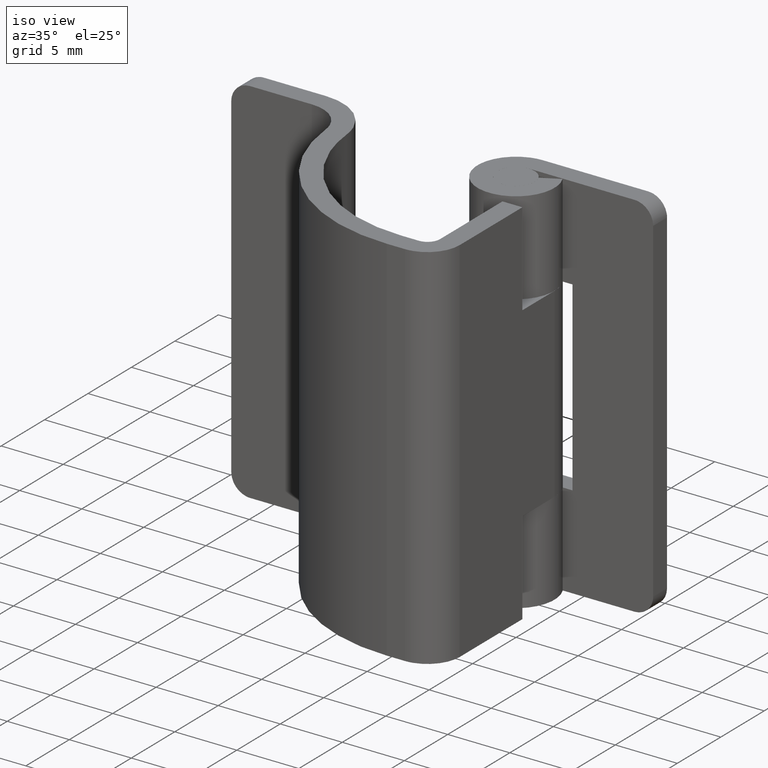
[diagram: clean part render]
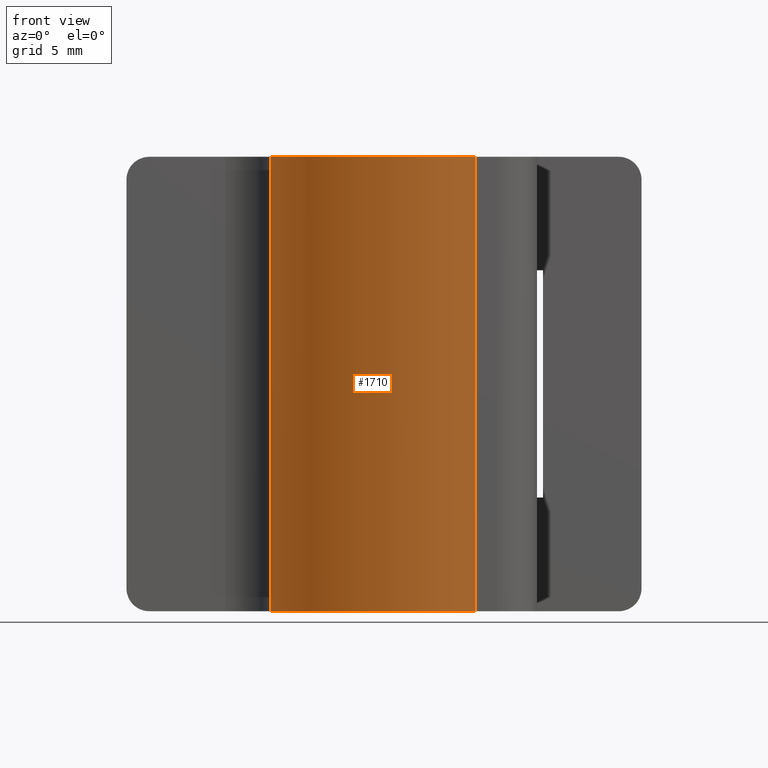
[diagram: tour spotlight — one face highlighted and labeled with its STEP entity id]
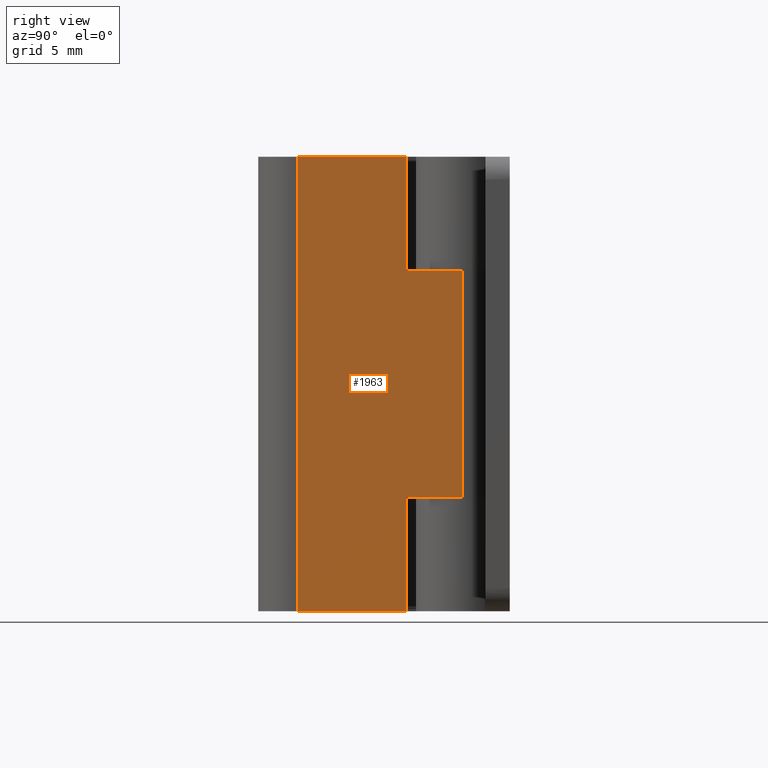
[diagram: tour spotlight — one face highlighted and labeled with its STEP entity id]
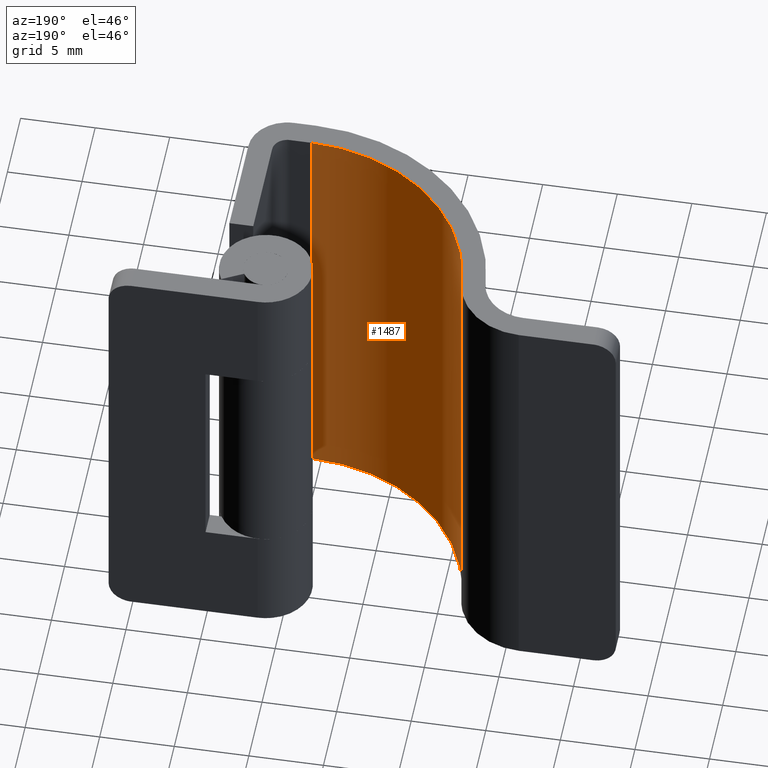
[diagram: tour spotlight — one face highlighted and labeled with its STEP entity id]
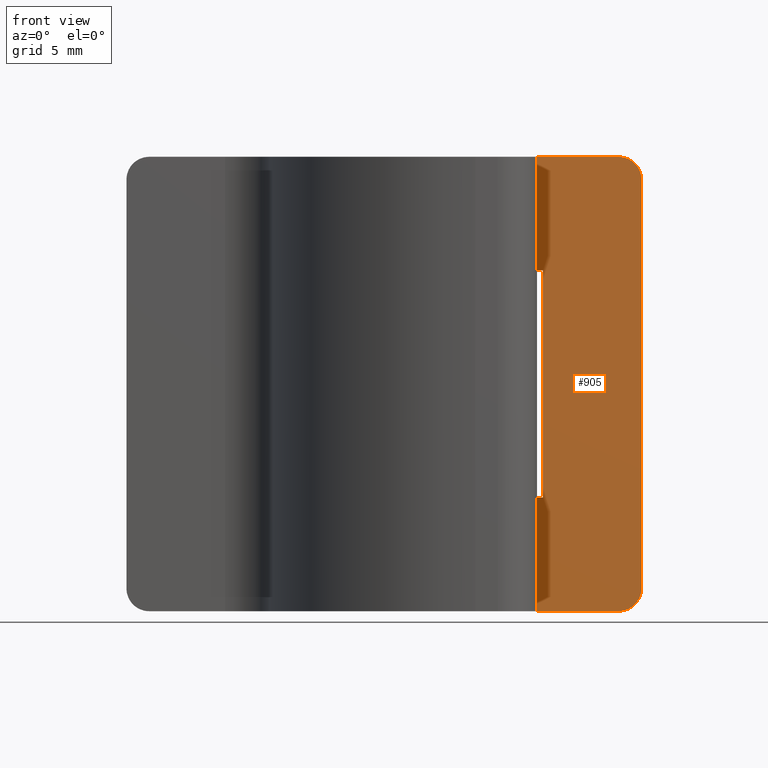
[diagram: tour spotlight — one face highlighted and labeled with its STEP entity id]
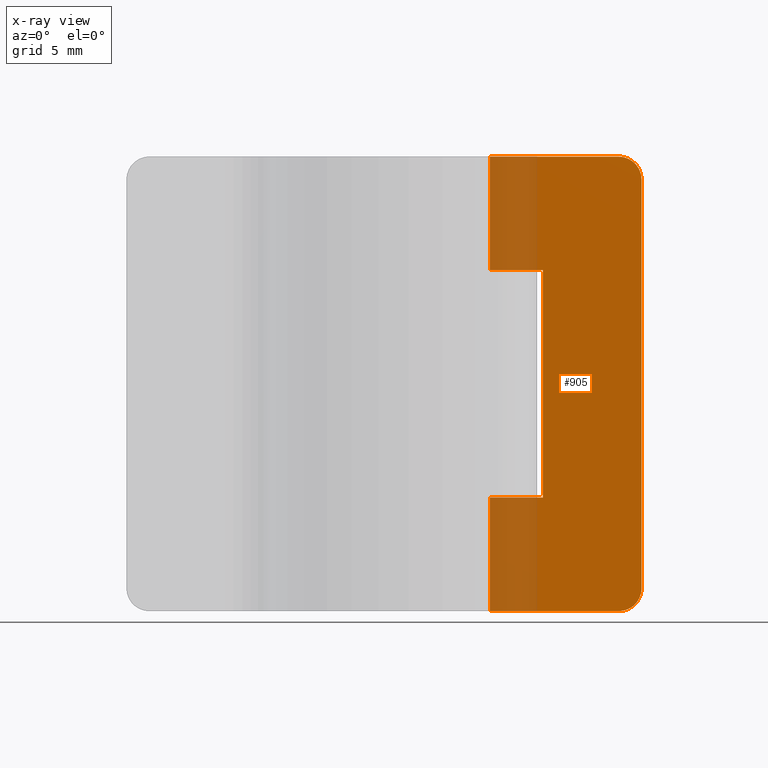
[diagram: x-ray of the same camera — body ghosted, this tour face saturated]
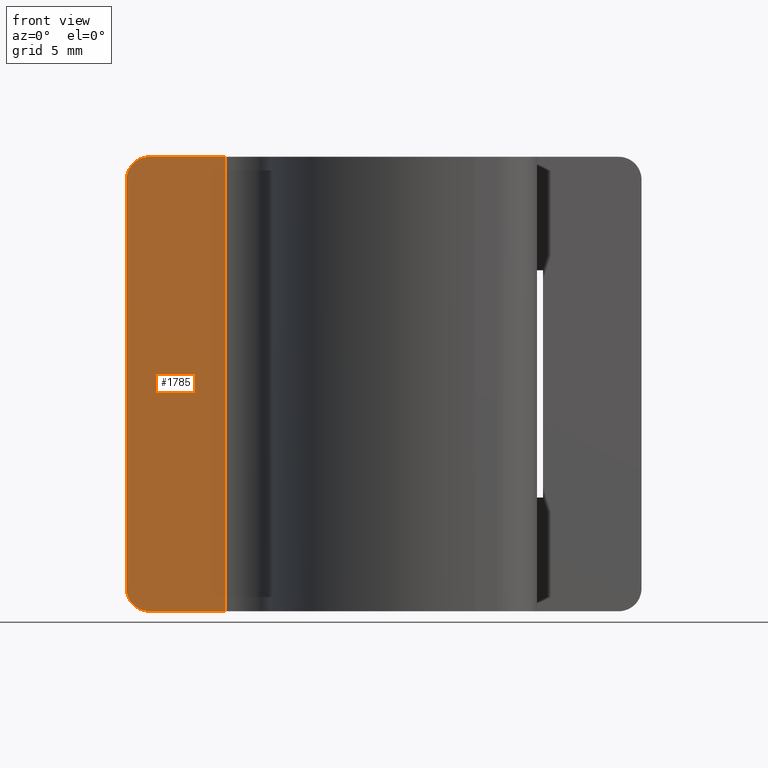
[diagram: tour spotlight — one face highlighted and labeled with its STEP entity id]
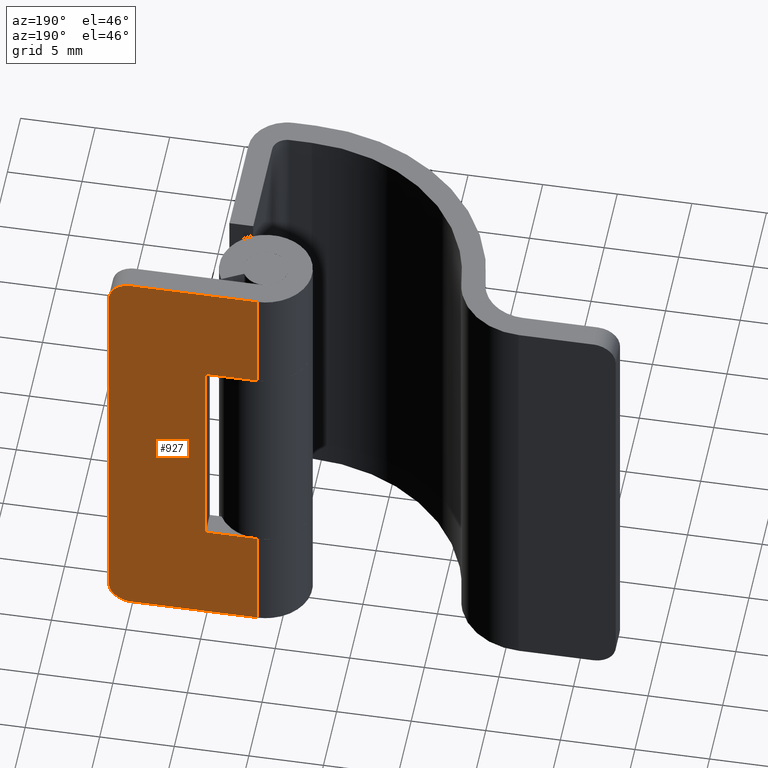
[diagram: tour spotlight — one face highlighted and labeled with its STEP entity id]
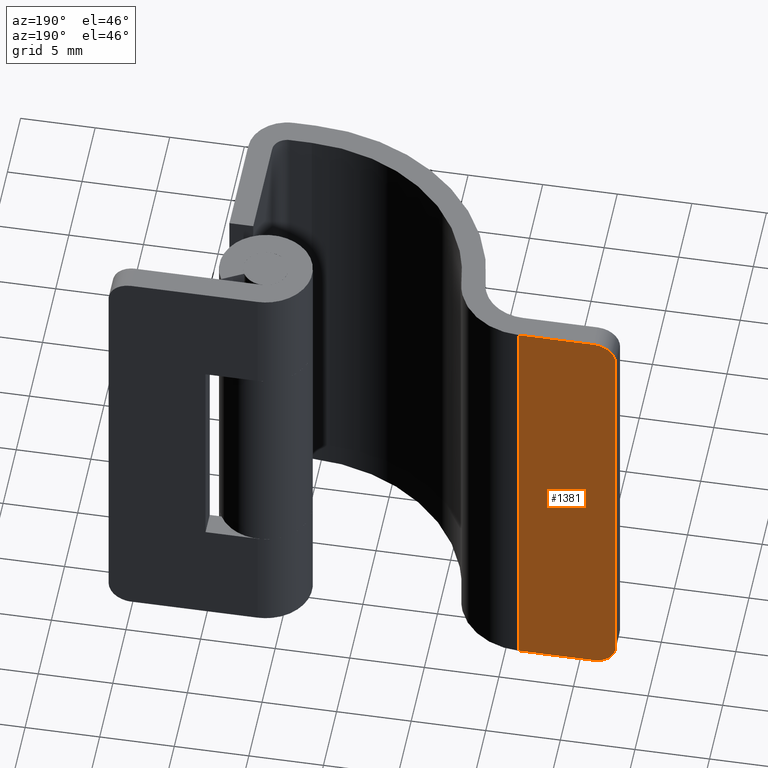
[diagram: tour spotlight — one face highlighted and labeled with its STEP entity id]
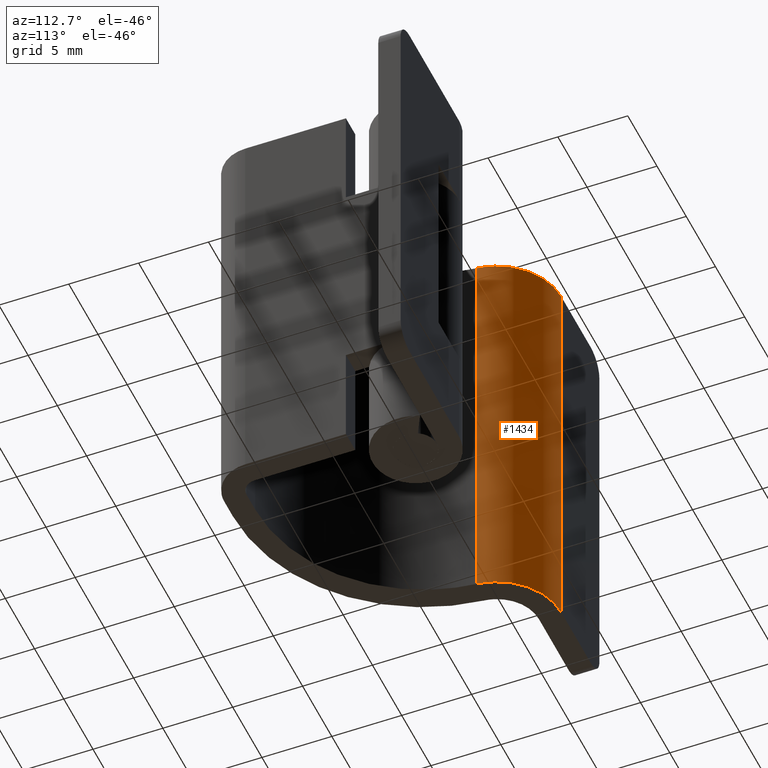
[diagram: tour spotlight — one face highlighted and labeled with its STEP entity id]
A machine part: a face-by-face anatomy tour. The part has 44 B-rep faces; the first image is the clean iso view, then the 8 largest visible faces are spotlighted one at a time (largest first), each with its STEP entity span.

Face 1 — front view, entity #1710. In plain terms, the highlighted face is a freeform B-spline surface patch.
Definition (entity closure, byte-faithful):
#1635=CARTESIAN_POINT('',(-4.477287712094340,-13.500001999999981,30.0));
#1636=VERTEX_POINT('',#1635);
#1642=CARTESIAN_POINT('',(-4.477287712094340,-13.500001999999981,0.0));
#1643=VERTEX_POINT('',#1642);
#1644=CARTESIAN_POINT('',(-4.477287712094340,-13.500001999999981,0.0));
#1645=CARTESIAN_POINT('',(-4.477287712094340,-13.500001999999981,30.0));
#1646=QUASI_UNIFORM_CURVE('',1,(#1644,#1645),.UNSPECIFIED.,.F.,.U.);
#1647=EDGE_CURVE('',#1643,#1636,#1646,.T.);
#1658=CARTESIAN_POINT('',(-3.884064043248034,-13.487057844574361,-0.750000000000001));
#1659=CARTESIAN_POINT('',(-3.884064043248034,-13.487057844574361,30.768750000000001));
#1660=CARTESIAN_POINT('',(-17.471119887822372,-14.080280801326326,-0.750000000000001));
#1661=CARTESIAN_POINT('',(-17.471119887822372,-14.080280801326326,30.768750000000008));
#1662=CARTESIAN_POINT('',(-18.064342844574359,-0.493224956751980,-0.750000000000001));
#1663=CARTESIAN_POINT('',(-18.064342844574359,-0.493224956751980,30.768750000000001));
#1671=(BOUNDED_SURFACE()B_SPLINE_SURFACE(1,2,((#1658,#1660,#1662),(#1659,#1661,#1663)),.UNSPECIFIED.,.F.,.F.,.U.)B_SPLINE_SURFACE_WITH_KNOTS((2,2),(3,3),(0.0,31.518750000000001),(0.0,22.533217793096352),.UNSPECIFIED.)GEOMETRIC_REPRESENTATION_ITEM()RATIONAL_B_SPLINE_SURFACE(((1.0,0.707106781186548,1.0),(1.0,0.707106781186548,1.0)))REPRESENTATION_ITEM('')SURFACE());
#1672=CARTESIAN_POINT('',(-18.013966576097701,-1.210843734939760,30.0));
#1673=VERTEX_POINT('',#1672);
#1674=CARTESIAN_POINT('',(-4.477287712094343,-13.500001999999981,30.0));
#1675=CARTESIAN_POINT('',(-16.823930230541610,-13.500001353531287,30.0));
#1676=CARTESIAN_POINT('',(-18.013966576097680,-1.210843734939759,30.0));
#1684=(BOUNDED_CURVE()B_SPLINE_CURVE(2,(#1674,#1675,#1676),.UNSPECIFIED.,.F.,.U.)CURVE()GEOMETRIC_REPRESENTATION_ITEM()QUASI_UNIFORM_CURVE()RATIONAL_B_SPLINE_CURVE((1.0,0.740400389587567,1.0))REPRESENTATION_ITEM(''));
#1685=EDGE_CURVE('',#1636,#1673,#1684,.T.);
#1686=ORIENTED_EDGE('',*,*,#1685,.T.);
#1687=CARTESIAN_POINT('',(-18.013966576097701,-1.210843734939760,0.0));
#1688=VERTEX_POINT('',#1687);
#1689=CARTESIAN_POINT('',(-18.013966576097701,-1.210843734939760,0.0));
#1690=CARTESIAN_POINT('',(-18.013966576097701,-1.210843734939760,30.0));
#1691=QUASI_UNIFORM_CURVE('',1,(#1689,#1690),.UNSPECIFIED.,.F.,.U.);
#1692=EDGE_CURVE('',#1688,#1673,#1691,.T.);
#1693=ORIENTED_EDGE('',*,*,#1692,.F.);
#1694=CARTESIAN_POINT('',(-4.477287712094343,-13.500001999999981,0.0));
#1695=CARTESIAN_POINT('',(-16.823930230541610,-13.500001353531287,0.0));
#1696=CARTESIAN_POINT('',(-18.013966576097680,-1.210843734939759,0.0));
#1704=(BOUNDED_CURVE()B_SPLINE_CURVE(2,(#1694,#1695,#1696),.UNSPECIFIED.,.F.,.U.)CURVE()GEOMETRIC_REPRESENTATION_ITEM()QUASI_UNIFORM_CURVE()RATIONAL_B_SPLINE_CURVE((1.0,0.740400389587567,1.0))REPRESENTATION_ITEM(''));
#1705=EDGE_CURVE('',#1643,#1688,#1704,.T.);
#1706=ORIENTED_EDGE('',*,*,#1705,.F.);
#1707=ORIENTED_EDGE('',*,*,#1647,.T.);
#1708=EDGE_LOOP('',(#1686,#1693,#1706,#1707));
#1709=FACE_OUTER_BOUND('',#1708,.T.);
#1710=ADVANCED_FACE('',(#1709),#1671,.T.);

Face 2 — right view, entity #1963. In plain terms, the highlighted face is a freeform B-spline surface patch.
Definition (entity closure, byte-faithful):
#1033=CARTESIAN_POINT('',(-0.400000999999904,-3.700001000000000,22.500000000000000));
#1034=VERTEX_POINT('',#1033);
#1040=CARTESIAN_POINT('',(-0.400000999999904,0.002489979722980,22.500000000000000));
#1041=VERTEX_POINT('',#1040);
#1042=CARTESIAN_POINT('',(-0.400000999999904,-3.700001000000000,22.500000000000000));
#1043=CARTESIAN_POINT('',(-0.400000999999904,0.002489979722980,22.500000000000000));
#1044=QUASI_UNIFORM_CURVE('',1,(#1042,#1043),.UNSPECIFIED.,.F.,.U.);
#1045=EDGE_CURVE('',#1034,#1041,#1044,.T.);
#1083=CARTESIAN_POINT('',(-0.400000999999904,-3.700001000000000,30.0));
#1084=VERTEX_POINT('',#1083);
#1090=CARTESIAN_POINT('',(-0.400000999999904,-3.700001000000000,22.500000000000000));
#1091=CARTESIAN_POINT('',(-0.400000999999904,-3.700001000000000,30.0));
#1092=QUASI_UNIFORM_CURVE('',1,(#1090,#1091),.UNSPECIFIED.,.F.,.U.);
#1093=EDGE_CURVE('',#1034,#1084,#1092,.T.);
#1111=CARTESIAN_POINT('',(-0.400000999999904,0.002489979722980,7.500000000000000));
#1112=VERTEX_POINT('',#1111);
#1132=CARTESIAN_POINT('',(-0.400000999999904,-3.700001000000000,7.500000000000000));
#1133=VERTEX_POINT('',#1132);
#1134=CARTESIAN_POINT('',(-0.400000999999904,-3.700001000000000,7.500000000000000));
#1135=CARTESIAN_POINT('',(-0.400000999999904,0.002489979722980,7.500000000000000));
#1136=QUASI_UNIFORM_CURVE('',1,(#1134,#1135),.UNSPECIFIED.,.F.,.U.);
#1137=EDGE_CURVE('',#1133,#1112,#1136,.T.);
#1189=CARTESIAN_POINT('',(-0.400000999999904,-3.700001000000000,0.0));
#1190=VERTEX_POINT('',#1189);
#1202=CARTESIAN_POINT('',(-0.400000999999904,-3.700001000000000,7.500000000000000));
#1203=CARTESIAN_POINT('',(-0.400000999999904,-3.700001000000000,0.0));
#1204=QUASI_UNIFORM_CURVE('',1,(#1202,#1203),.UNSPECIFIED.,.F.,.U.);
#1205=EDGE_CURVE('',#1133,#1190,#1204,.T.);
#1583=CARTESIAN_POINT('',(-0.400000999999904,-10.900000000000000,30.0));
#1584=VERTEX_POINT('',#1583);
#1607=CARTESIAN_POINT('',(-0.400000999999904,-10.900000000000000,0.0));
#1608=VERTEX_POINT('',#1607);
#1622=CARTESIAN_POINT('',(-0.400000999999904,-10.900000000000000,0.0));
#1623=CARTESIAN_POINT('',(-0.400000999999904,-10.900000000000000,30.0));
#1624=QUASI_UNIFORM_CURVE('',1,(#1622,#1623),.UNSPECIFIED.,.F.,.U.);
#1625=EDGE_CURVE('',#1608,#1584,#1624,.T.);
#1797=CARTESIAN_POINT('',(-0.400000999999904,-10.900000000000000,0.0));
#1798=CARTESIAN_POINT('',(-0.400000999999904,-3.700001000000000,0.0));
#1799=QUASI_UNIFORM_CURVE('',1,(#1797,#1798),.UNSPECIFIED.,.F.,.U.);
#1800=EDGE_CURVE('',#1608,#1190,#1799,.T.);
#1838=CARTESIAN_POINT('',(-0.400000999999904,-10.900000000000000,30.0));
#1839=CARTESIAN_POINT('',(-0.400000999999904,-3.700001000000000,30.0));
#1840=QUASI_UNIFORM_CURVE('',1,(#1838,#1839),.UNSPECIFIED.,.F.,.U.);
#1841=EDGE_CURVE('',#1584,#1084,#1840,.T.);
#1938=CARTESIAN_POINT('',(-0.400000999999904,0.002489979722980,7.500000000000000));
#1939=CARTESIAN_POINT('',(-0.400000999999904,0.002489979722980,22.500000000000000));
#1940=QUASI_UNIFORM_CURVE('',1,(#1938,#1939),.UNSPECIFIED.,.F.,.U.);
#1941=EDGE_CURVE('',#1112,#1041,#1940,.T.);
#1948=CARTESIAN_POINT('',(-0.400000999999904,-11.444578943976920,31.498499941854181));
#1949=CARTESIAN_POINT('',(-0.400000999999904,-11.444578943976920,-1.498500746516883));
#1950=CARTESIAN_POINT('',(-0.400000999999904,0.547069606030894,31.498499941854181));
#1951=CARTESIAN_POINT('',(-0.400000999999904,0.547069606030894,-1.498500746516883));
#1952=B_SPLINE_SURFACE_WITH_KNOTS('',1,1,((#1948,#1950),(#1949,#1951)),.UNSPECIFIED.,.F.,.F.,.U.,(2,2),(2,2),(0.0,32.997000688371060),(0.0,11.991648550007820),.UNSPECIFIED.);
#1953=ORIENTED_EDGE('',*,*,#1045,.F.);
#1954=ORIENTED_EDGE('',*,*,#1093,.T.);
#1955=ORIENTED_EDGE('',*,*,#1841,.F.);
#1956=ORIENTED_EDGE('',*,*,#1625,.F.);
#1957=ORIENTED_EDGE('',*,*,#1800,.T.);
#1958=ORIENTED_EDGE('',*,*,#1205,.F.);
#1959=ORIENTED_EDGE('',*,*,#1137,.T.);
#1960=ORIENTED_EDGE('',*,*,#1941,.T.);
#1961=EDGE_LOOP('',(#1953,#1954,#1955,#1956,#1957,#1958,#1959,#1960));
#1962=FACE_OUTER_BOUND('',#1961,.T.);
#1963=ADVANCED_FACE('',(#1962),#1952,.T.);

Face 3 — auxiliary view, entity #1487. In plain terms, the highlighted face is a freeform B-spline surface patch.
Definition (entity closure, byte-faithful):
#1396=CARTESIAN_POINT('',(-16.421415897728899,-1.056628506024100,30.0));
#1397=VERTEX_POINT('',#1396);
#1411=CARTESIAN_POINT('',(-16.421415897728899,-1.056628506024100,0.0));
#1412=VERTEX_POINT('',#1411);
#1413=CARTESIAN_POINT('',(-16.421415897728899,-1.056628506024100,0.0));
#1414=CARTESIAN_POINT('',(-16.421415897728899,-1.056628506024100,30.0));
#1415=QUASI_UNIFORM_CURVE('',1,(#1413,#1414),.UNSPECIFIED.,.F.,.U.);
#1416=EDGE_CURVE('',#1412,#1397,#1415,.T.);
#1435=CARTESIAN_POINT('',(-4.372568574019523,-11.899545076770050,-0.750000000000001));
#1436=CARTESIAN_POINT('',(-4.372568574019523,-11.899545076770050,30.768750000000001));
#1437=CARTESIAN_POINT('',(-15.960392626070298,-12.000670485254867,-0.750000000000001));
#1438=CARTESIAN_POINT('',(-15.960392626070298,-12.000670485254867,30.768750000000004));
#1439=CARTESIAN_POINT('',(-16.465865658982288,-0.423434648384029,-0.750000000000001));
#1440=CARTESIAN_POINT('',(-16.465865658982288,-0.423434648384029,30.768750000000001));
#1448=(BOUNDED_SURFACE()B_SPLINE_SURFACE(1,2,((#1435,#1437,#1439),(#1436,#1438,#1440)),.UNSPECIFIED.,.F.,.F.,.U.)B_SPLINE_SURFACE_WITH_KNOTS((2,2),(3,3),(0.0,31.518750000000001),(0.0,19.393258840087519),.UNSPECIFIED.)GEOMETRIC_REPRESENTATION_ITEM()RATIONAL_B_SPLINE_SURFACE(((1.0,0.719339800338651,1.0),(1.0,0.719339800338651,1.0)))REPRESENTATION_ITEM('')SURFACE());
#1449=CARTESIAN_POINT('',(-4.477287000000000,-11.900002000000001,30.0));
#1450=VERTEX_POINT('',#1449);
#1451=CARTESIAN_POINT('',(-4.477287000000000,-11.900002000000001,30.0));
#1452=CARTESIAN_POINT('',(-15.371382588038438,-11.900002000000001,29.999999999999996));
#1453=CARTESIAN_POINT('',(-16.421415897728892,-1.056628506024099,30.0));
#1461=(BOUNDED_CURVE()B_SPLINE_CURVE(2,(#1451,#1452,#1453),.UNSPECIFIED.,.F.,.U.)CURVE()GEOMETRIC_REPRESENTATION_ITEM()QUASI_UNIFORM_CURVE()RATIONAL_B_SPLINE_CURVE((1.0,0.740400412671642,1.0))REPRESENTATION_ITEM(''));
#1462=EDGE_CURVE('',#1450,#1397,#1461,.T.);
#1463=ORIENTED_EDGE('',*,*,#1462,.F.);
#1464=CARTESIAN_POINT('',(-4.477287000000000,-11.900002000000001,0.0));
#1465=VERTEX_POINT('',#1464);
#1466=CARTESIAN_POINT('',(-4.477287000000000,-11.900002000000001,0.0));
#1467=CARTESIAN_POINT('',(-4.477287000000000,-11.900002000000001,30.0));
#1468=QUASI_UNIFORM_CURVE('',1,(#1466,#1467),.UNSPECIFIED.,.F.,.U.);
#1469=EDGE_CURVE('',#1465,#1450,#1468,.T.);
#1470=ORIENTED_EDGE('',*,*,#1469,.F.);
#1471=CARTESIAN_POINT('',(-4.477287000000000,-11.900002000000001,0.0));
#1472=CARTESIAN_POINT('',(-15.371382588038438,-11.900002000000001,0.0));
#1473=CARTESIAN_POINT('',(-16.421415897728892,-1.056628506024099,0.0));
#1481=(BOUNDED_CURVE()B_SPLINE_CURVE(2,(#1471,#1472,#1473),.UNSPECIFIED.,.F.,.U.)CURVE()GEOMETRIC_REPRESENTATION_ITEM()QUASI_UNIFORM_CURVE()RATIONAL_B_SPLINE_CURVE((1.0,0.740400412671642,1.0))REPRESENTATION_ITEM(''));
#1482=EDGE_CURVE('',#1465,#1412,#1481,.T.);
#1483=ORIENTED_EDGE('',*,*,#1482,.T.);
#1484=ORIENTED_EDGE('',*,*,#1416,.T.);
#1485=EDGE_LOOP('',(#1463,#1470,#1483,#1484));
#1486=FACE_OUTER_BOUND('',#1485,.T.);
#1487=ADVANCED_FACE('',(#1486),#1448,.F.);

Face 4 — front view, entity #905. An x-ray twin of the same camera follows (body ghosted, this face saturated) — the face is partly hidden behind the body. In plain terms, the highlighted face is a freeform B-spline surface patch.
Definition (entity closure, byte-faithful):
#298=CARTESIAN_POINT('',(0.0,1.500000000000000,7.500000000000000));
#299=VERTEX_POINT('',#298);
#305=CARTESIAN_POINT('',(0.0,1.500000000000000,22.500000000000000));
#306=VERTEX_POINT('',#305);
#307=CARTESIAN_POINT('',(0.0,1.500000000000000,22.500000000000000));
#308=CARTESIAN_POINT('',(0.0,1.500000000000000,7.500000000000000));
#309=QUASI_UNIFORM_CURVE('',1,(#307,#308),.UNSPECIFIED.,.F.,.U.);
#310=EDGE_CURVE('',#306,#299,#309,.T.);
#332=CARTESIAN_POINT('',(-3.499999999999901,1.500000000000000,7.500000000000000));
#333=VERTEX_POINT('',#332);
#334=CARTESIAN_POINT('',(0.0,1.500000000000000,7.500000000000000));
#335=CARTESIAN_POINT('',(-3.499999999999901,1.500000000000000,7.500000000000000));
#336=QUASI_UNIFORM_CURVE('',1,(#334,#335),.UNSPECIFIED.,.F.,.U.);
#337=EDGE_CURVE('',#299,#333,#336,.T.);
#402=CARTESIAN_POINT('',(-3.499999999999901,1.500000000000000,22.500000000000000));
#403=VERTEX_POINT('',#402);
#404=CARTESIAN_POINT('',(0.0,1.500000000000000,22.500000000000000));
#405=CARTESIAN_POINT('',(-3.499999999999901,1.500000000000000,22.500000000000000));
#406=QUASI_UNIFORM_CURVE('',1,(#404,#405),.UNSPECIFIED.,.F.,.U.);
#407=EDGE_CURVE('',#306,#403,#406,.T.);
#498=CARTESIAN_POINT('',(5.0,1.500000000000000,30.0));
#499=VERTEX_POINT('',#498);
#505=CARTESIAN_POINT('',(6.500000000000000,1.500000000000000,28.500000000000000));
#506=VERTEX_POINT('',#505);
#507=CARTESIAN_POINT('',(6.500000000000001,1.500000000000000,28.500000000000000));
#508=CARTESIAN_POINT('',(6.500000000000003,1.500000000000000,30.000000000000004));
#509=CARTESIAN_POINT('',(5.0,1.500000000000000,30.0));
#517=(BOUNDED_CURVE()B_SPLINE_CURVE(2,(#507,#508,#509),.UNSPECIFIED.,.F.,.U.)CURVE()GEOMETRIC_REPRESENTATION_ITEM()QUASI_UNIFORM_CURVE()RATIONAL_B_SPLINE_CURVE((1.0,0.707106781186548,1.0))REPRESENTATION_ITEM(''));
#518=EDGE_CURVE('',#506,#499,#517,.T.);
#559=CARTESIAN_POINT('',(6.500000000000000,1.500000000000000,1.499999999999946));
#560=VERTEX_POINT('',#559);
#566=CARTESIAN_POINT('',(5.0,1.500000000000000,0.0));
#567=VERTEX_POINT('',#566);
#568=CARTESIAN_POINT('',(5.0,1.500000000000000,0.0));
#569=CARTESIAN_POINT('',(6.500000000000003,1.500000000000000,0.0));
#570=CARTESIAN_POINT('',(6.500000000000000,1.500000000000000,1.499999999999946));
#578=(BOUNDED_CURVE()B_SPLINE_CURVE(2,(#568,#569,#570),.UNSPECIFIED.,.F.,.U.)CURVE()GEOMETRIC_REPRESENTATION_ITEM()QUASI_UNIFORM_CURVE()RATIONAL_B_SPLINE_CURVE((1.0,0.707106781186548,1.0))REPRESENTATION_ITEM(''));
#579=EDGE_CURVE('',#567,#560,#578,.T.);
#594=CARTESIAN_POINT('',(-3.499999999999901,1.500000000000000,30.0));
#595=VERTEX_POINT('',#594);
#596=CARTESIAN_POINT('',(5.0,1.500000000000000,30.0));
#597=CARTESIAN_POINT('',(-3.499999999999901,1.500000000000000,30.0));
#598=QUASI_UNIFORM_CURVE('',1,(#596,#597),.UNSPECIFIED.,.F.,.U.);
#599=EDGE_CURVE('',#499,#595,#598,.T.);
#672=CARTESIAN_POINT('',(-3.499999999999901,1.500000000000000,0.0));
#673=VERTEX_POINT('',#672);
#674=CARTESIAN_POINT('',(5.0,1.500000000000000,0.0));
#675=CARTESIAN_POINT('',(-3.499999999999901,1.500000000000000,0.0));
#676=QUASI_UNIFORM_CURVE('',1,(#674,#675),.UNSPECIFIED.,.F.,.U.);
#677=EDGE_CURVE('',#567,#673,#676,.T.);
#774=CARTESIAN_POINT('',(-3.499999999999901,1.500000000000000,0.0));
#775=CARTESIAN_POINT('',(-3.499999999999901,1.500000000000000,7.500000000000000));
#776=QUASI_UNIFORM_CURVE('',1,(#774,#775),.UNSPECIFIED.,.F.,.U.);
#777=EDGE_CURVE('',#673,#333,#776,.T.);
#787=CARTESIAN_POINT('',(6.500000000000000,1.500000000000000,1.499999999999946));
#788=CARTESIAN_POINT('',(6.500000000000000,1.500000000000000,28.500000000000000));
#789=QUASI_UNIFORM_CURVE('',1,(#787,#788),.UNSPECIFIED.,.F.,.U.);
#790=EDGE_CURVE('',#560,#506,#789,.T.);
#879=CARTESIAN_POINT('',(-3.499999999999901,1.500000000000000,22.500000000000000));
#880=CARTESIAN_POINT('',(-3.499999999999901,1.500000000000000,30.0));
#881=QUASI_UNIFORM_CURVE('',1,(#879,#880),.UNSPECIFIED.,.F.,.U.);
#882=EDGE_CURVE('',#403,#595,#881,.T.);
#888=CARTESIAN_POINT('',(-3.999499980617955,1.500000000000000,-1.498499941854179));
#889=CARTESIAN_POINT('',(-3.999499980617955,1.500000000000000,31.498500746516889));
#890=CARTESIAN_POINT('',(6.999500248838957,1.500000000000000,-1.498499941854179));
#891=CARTESIAN_POINT('',(6.999500248838957,1.500000000000000,31.498500746516889));
#892=B_SPLINE_SURFACE_WITH_KNOTS('',1,1,((#888,#890),(#889,#891)),.UNSPECIFIED.,.F.,.F.,.U.,(2,2),(2,2),(0.0,32.997000688371067),(0.0,10.999000229456909),.UNSPECIFIED.);
#893=ORIENTED_EDGE('',*,*,#882,.F.);
#894=ORIENTED_EDGE('',*,*,#407,.F.);
#895=ORIENTED_EDGE('',*,*,#310,.T.);
#896=ORIENTED_EDGE('',*,*,#337,.T.);
#897=ORIENTED_EDGE('',*,*,#777,.F.);
#898=ORIENTED_EDGE('',*,*,#677,.F.);
#899=ORIENTED_EDGE('',*,*,#579,.T.);
#900=ORIENTED_EDGE('',*,*,#790,.T.);
#901=ORIENTED_EDGE('',*,*,#518,.T.);
#902=ORIENTED_EDGE('',*,*,#599,.T.);
#903=EDGE_LOOP('',(#893,#894,#895,#896,#897,#898,#899,#900,#901,#902));
#904=FACE_OUTER_BOUND('',#903,.T.);
#905=ADVANCED_FACE('',(#904),#892,.F.);

Face 5 — front view, entity #1785. In plain terms, the highlighted face is a freeform B-spline surface patch.
Definition (entity closure, byte-faithful):
#1241=CARTESIAN_POINT('',(-27.500000000000000,1.500000000000000,28.500000000000000));
#1242=VERTEX_POINT('',#1241);
#1248=CARTESIAN_POINT('',(-26.0,1.500000000000000,30.0));
#1249=VERTEX_POINT('',#1248);
#1250=CARTESIAN_POINT('',(-26.0,1.500000000000000,30.0));
#1251=CARTESIAN_POINT('',(-27.500000000000004,1.500000000000000,30.000000000000004));
#1252=CARTESIAN_POINT('',(-27.500000000000000,1.500000000000000,28.500000000000000));
#1260=(BOUNDED_CURVE()B_SPLINE_CURVE(2,(#1250,#1251,#1252),.UNSPECIFIED.,.F.,.U.)CURVE()GEOMETRIC_REPRESENTATION_ITEM()QUASI_UNIFORM_CURVE()RATIONAL_B_SPLINE_CURVE((1.0,0.707106781186548,1.0))REPRESENTATION_ITEM(''));
#1261=EDGE_CURVE('',#1249,#1242,#1260,.T.);
#1302=CARTESIAN_POINT('',(-26.0,1.500000000000000,0.0));
#1303=VERTEX_POINT('',#1302);
#1309=CARTESIAN_POINT('',(-27.500000000000000,1.500000000000000,1.499999999999946));
#1310=VERTEX_POINT('',#1309);
#1311=CARTESIAN_POINT('',(-27.500000000000000,1.500000000000000,1.499999999999946));
#1312=CARTESIAN_POINT('',(-27.500000000000004,1.500000000000000,-5.399327E-014));
#1313=CARTESIAN_POINT('',(-26.0,1.500000000000000,-5.399327E-014));
#1321=(BOUNDED_CURVE()B_SPLINE_CURVE(2,(#1311,#1312,#1313),.UNSPECIFIED.,.F.,.U.)CURVE()GEOMETRIC_REPRESENTATION_ITEM()QUASI_UNIFORM_CURVE()RATIONAL_B_SPLINE_CURVE((1.0,0.707106781186548,1.0))REPRESENTATION_ITEM(''));
#1322=EDGE_CURVE('',#1310,#1303,#1321,.T.);
#1343=CARTESIAN_POINT('',(-27.500000000000000,1.500000000000000,1.499999999999946));
#1344=CARTESIAN_POINT('',(-27.500000000000000,1.500000000000000,28.500000000000000));
#1345=QUASI_UNIFORM_CURVE('',1,(#1343,#1344),.UNSPECIFIED.,.F.,.U.);
#1346=EDGE_CURVE('',#1310,#1242,#1345,.T.);
#1725=CARTESIAN_POINT('',(-20.999998835530999,1.500000000000000,30.0));
#1726=VERTEX_POINT('',#1725);
#1740=CARTESIAN_POINT('',(-20.999998835530999,1.500000000000000,0.0));
#1741=VERTEX_POINT('',#1740);
#1742=CARTESIAN_POINT('',(-20.999998835530999,1.500000000000000,0.0));
#1743=CARTESIAN_POINT('',(-20.999998835530999,1.500000000000000,30.0));
#1744=QUASI_UNIFORM_CURVE('',1,(#1742,#1743),.UNSPECIFIED.,.F.,.U.);
#1745=EDGE_CURVE('',#1741,#1726,#1744,.T.);
#1764=CARTESIAN_POINT('',(-27.824675068789539,1.500000000000000,31.498499941854181));
#1765=CARTESIAN_POINT('',(-27.824675068789539,1.500000000000000,-1.498500746516883));
#1766=CARTESIAN_POINT('',(-20.675323127481541,1.500000000000000,31.498499941854181));
#1767=CARTESIAN_POINT('',(-20.675323127481541,1.500000000000000,-1.498500746516883));
#1768=B_SPLINE_SURFACE_WITH_KNOTS('',1,1,((#1764,#1766),(#1765,#1767)),.UNSPECIFIED.,.F.,.F.,.U.,(2,2),(2,2),(0.0,32.997000688371060),(0.0,7.149351941307995),.UNSPECIFIED.);
#1769=ORIENTED_EDGE('',*,*,#1346,.F.);
#1770=ORIENTED_EDGE('',*,*,#1322,.T.);
#1771=CARTESIAN_POINT('',(-26.0,1.500000000000000,0.0));
#1772=CARTESIAN_POINT('',(-20.999998835530999,1.500000000000000,0.0));
#1773=QUASI_UNIFORM_CURVE('',1,(#1771,#1772),.UNSPECIFIED.,.F.,.U.);
#1774=EDGE_CURVE('',#1303,#1741,#1773,.T.);
#1775=ORIENTED_EDGE('',*,*,#1774,.T.);
#1776=ORIENTED_EDGE('',*,*,#1745,.T.);
#1777=CARTESIAN_POINT('',(-26.0,1.500000000000000,30.0));
#1778=CARTESIAN_POINT('',(-20.999998835530999,1.500000000000000,30.0));
#1779=QUASI_UNIFORM_CURVE('',1,(#1777,#1778),.UNSPECIFIED.,.F.,.U.);
#1780=EDGE_CURVE('',#1249,#1726,#1779,.T.);
#1781=ORIENTED_EDGE('',*,*,#1780,.F.);
#1782=ORIENTED_EDGE('',*,*,#1261,.T.);
#1783=EDGE_LOOP('',(#1769,#1770,#1775,#1776,#1781,#1782));
#1784=FACE_OUTER_BOUND('',#1783,.T.);
#1785=ADVANCED_FACE('',(#1784),#1768,.T.);

Face 6 — auxiliary view, entity #927. In plain terms, the highlighted face is a freeform B-spline surface patch.
Definition (entity closure, byte-faithful):
#296=CARTESIAN_POINT('',(0.0,3.099998000000000,7.500000000000000));
#297=VERTEX_POINT('',#296);
#312=CARTESIAN_POINT('',(0.0,3.099998000000000,22.500000000000000));
#313=VERTEX_POINT('',#312);
#319=CARTESIAN_POINT('',(0.0,3.099998000000000,22.500000000000000));
#320=CARTESIAN_POINT('',(0.0,3.099998000000000,7.500000000000000));
#321=QUASI_UNIFORM_CURVE('',1,(#319,#320),.UNSPECIFIED.,.F.,.U.);
#322=EDGE_CURVE('',#313,#297,#321,.T.);
#340=CARTESIAN_POINT('',(-3.496478637194685,3.099998000000000,7.500000000000000));
#341=VERTEX_POINT('',#340);
#342=CARTESIAN_POINT('',(-3.496478637194685,3.099998000000000,7.500000000000000));
#343=CARTESIAN_POINT('',(0.0,3.099998000000000,7.500000000000000));
#344=QUASI_UNIFORM_CURVE('',1,(#342,#343),.UNSPECIFIED.,.F.,.U.);
#345=EDGE_CURVE('',#341,#297,#344,.T.);
#437=CARTESIAN_POINT('',(-3.496478637194685,3.099998000000000,22.500000000000000));
#438=VERTEX_POINT('',#437);
#458=CARTESIAN_POINT('',(-3.496478637194685,3.099998000000000,22.500000000000000));
#459=CARTESIAN_POINT('',(0.0,3.099998000000000,22.500000000000000));
#460=QUASI_UNIFORM_CURVE('',1,(#458,#459),.UNSPECIFIED.,.F.,.U.);
#461=EDGE_CURVE('',#438,#313,#460,.T.);
#481=CARTESIAN_POINT('',(5.0,3.099998000000000,30.0));
#482=VERTEX_POINT('',#481);
#483=CARTESIAN_POINT('',(6.500000000000000,3.099998000000000,28.500000000000000));
#484=VERTEX_POINT('',#483);
#485=CARTESIAN_POINT('',(5.0,3.099998000000000,30.0));
#486=CARTESIAN_POINT('',(6.500000000000003,3.099998000000000,30.000000000000004));
#487=CARTESIAN_POINT('',(6.500000000000001,3.099998000000000,28.500000000000000));
#495=(BOUNDED_CURVE()B_SPLINE_CURVE(2,(#485,#486,#487),.UNSPECIFIED.,.F.,.U.)CURVE()GEOMETRIC_REPRESENTATION_ITEM()QUASI_UNIFORM_CURVE()RATIONAL_B_SPLINE_CURVE((1.0,0.707106781186548,1.0))REPRESENTATION_ITEM(''));
#496=EDGE_CURVE('',#482,#484,#495,.T.);
#542=CARTESIAN_POINT('',(6.500000000000000,3.099998000000000,1.499999999999946));
#543=VERTEX_POINT('',#542);
#544=CARTESIAN_POINT('',(5.0,3.099998000000000,0.0));
#545=VERTEX_POINT('',#544);
#546=CARTESIAN_POINT('',(6.500000000000000,3.099998000000000,1.499999999999946));
#547=CARTESIAN_POINT('',(6.500000000000003,3.099998000000000,0.0));
#548=CARTESIAN_POINT('',(5.0,3.099998000000000,0.0));
#556=(BOUNDED_CURVE()B_SPLINE_CURVE(2,(#546,#547,#548),.UNSPECIFIED.,.F.,.U.)CURVE()GEOMETRIC_REPRESENTATION_ITEM()QUASI_UNIFORM_CURVE()RATIONAL_B_SPLINE_CURVE((1.0,0.707106781186548,1.0))REPRESENTATION_ITEM(''));
#557=EDGE_CURVE('',#543,#545,#556,.T.);
#602=CARTESIAN_POINT('',(-3.496478637194680,3.099998000000000,30.0));
#603=VERTEX_POINT('',#602);
#604=CARTESIAN_POINT('',(-3.496478637194680,3.099998000000000,30.0));
#605=CARTESIAN_POINT('',(5.0,3.099998000000000,30.0));
#606=QUASI_UNIFORM_CURVE('',1,(#604,#605),.UNSPECIFIED.,.F.,.U.);
#607=EDGE_CURVE('',#603,#482,#606,.T.);
#664=CARTESIAN_POINT('',(-3.496478637194680,3.099998000000000,0.0));
#665=VERTEX_POINT('',#664);
#666=CARTESIAN_POINT('',(-3.496478637194680,3.099998000000000,0.0));
#667=CARTESIAN_POINT('',(5.0,3.099998000000000,0.0));
#668=QUASI_UNIFORM_CURVE('',1,(#666,#667),.UNSPECIFIED.,.F.,.U.);
#669=EDGE_CURVE('',#665,#545,#668,.T.);
#793=CARTESIAN_POINT('',(6.500000000000000,3.099998000000000,1.499999999999946));
#794=CARTESIAN_POINT('',(6.500000000000000,3.099998000000000,28.500000000000000));
#795=QUASI_UNIFORM_CURVE('',1,(#793,#794),.UNSPECIFIED.,.F.,.U.);
#796=EDGE_CURVE('',#543,#484,#795,.T.);
#826=CARTESIAN_POINT('',(-3.496478637194680,3.099998000000000,0.0));
#827=CARTESIAN_POINT('',(-3.496478637194685,3.099998000000000,7.500000000000000));
#828=QUASI_UNIFORM_CURVE('',1,(#826,#827),.UNSPECIFIED.,.F.,.U.);
#829=EDGE_CURVE('',#665,#341,#828,.T.);
#906=CARTESIAN_POINT('',(-3.995802631907654,3.099998000000000,31.498499941854181));
#907=CARTESIAN_POINT('',(-3.995802631907654,3.099998000000000,-1.498500746516883));
#908=CARTESIAN_POINT('',(6.999324352214905,3.099998000000000,31.498499941854181));
#909=CARTESIAN_POINT('',(6.999324352214905,3.099998000000000,-1.498500746516883));
#910=B_SPLINE_SURFACE_WITH_KNOTS('',1,1,((#906,#908),(#907,#909)),.UNSPECIFIED.,.F.,.F.,.U.,(2,2),(2,2),(0.0,32.997000688371060),(0.0,10.995126984122560),.UNSPECIFIED.);
#911=ORIENTED_EDGE('',*,*,#461,.F.);
#912=CARTESIAN_POINT('',(-3.496478637194685,3.099998000000000,22.500000000000000));
#913=CARTESIAN_POINT('',(-3.496478637194680,3.099998000000000,30.0));
#914=QUASI_UNIFORM_CURVE('',1,(#912,#913),.UNSPECIFIED.,.F.,.U.);
#915=EDGE_CURVE('',#438,#603,#914,.T.);
#916=ORIENTED_EDGE('',*,*,#915,.T.);
#917=ORIENTED_EDGE('',*,*,#607,.T.);
#918=ORIENTED_EDGE('',*,*,#496,.T.);
#919=ORIENTED_EDGE('',*,*,#796,.F.);
#920=ORIENTED_EDGE('',*,*,#557,.T.);
#921=ORIENTED_EDGE('',*,*,#669,.F.);
#922=ORIENTED_EDGE('',*,*,#829,.T.);
#923=ORIENTED_EDGE('',*,*,#345,.T.);
#924=ORIENTED_EDGE('',*,*,#322,.F.);
#925=EDGE_LOOP('',(#911,#916,#917,#918,#919,#920,#921,#922,#923,#924));
#926=FACE_OUTER_BOUND('',#925,.T.);
#927=ADVANCED_FACE('',(#926),#910,.F.);

Face 7 — auxiliary view, entity #1381. In plain terms, the highlighted face is a freeform B-spline surface patch.
Definition (entity closure, byte-faithful):
#1224=CARTESIAN_POINT('',(-27.500000000000000,3.099998000000000,28.500000000000000));
#1225=VERTEX_POINT('',#1224);
#1226=CARTESIAN_POINT('',(-26.0,3.099998000000000,30.0));
#1227=VERTEX_POINT('',#1226);
#1228=CARTESIAN_POINT('',(-27.500000000000000,3.099998000000000,28.500000000000000));
#1229=CARTESIAN_POINT('',(-27.500000000000004,3.099998000000000,30.000000000000004));
#1230=CARTESIAN_POINT('',(-26.0,3.099998000000000,30.0));
#1238=(BOUNDED_CURVE()B_SPLINE_CURVE(2,(#1228,#1229,#1230),.UNSPECIFIED.,.F.,.U.)CURVE()GEOMETRIC_REPRESENTATION_ITEM()QUASI_UNIFORM_CURVE()RATIONAL_B_SPLINE_CURVE((1.0,0.707106781186548,1.0))REPRESENTATION_ITEM(''));
#1239=EDGE_CURVE('',#1225,#1227,#1238,.T.);
#1285=CARTESIAN_POINT('',(-26.0,3.099998000000000,0.0));
#1286=VERTEX_POINT('',#1285);
#1287=CARTESIAN_POINT('',(-27.500000000000000,3.099998000000000,1.499999999999946));
#1288=VERTEX_POINT('',#1287);
#1289=CARTESIAN_POINT('',(-26.0,3.099998000000000,-5.399327E-014));
#1290=CARTESIAN_POINT('',(-27.500000000000004,3.099998000000000,-5.399327E-014));
#1291=CARTESIAN_POINT('',(-27.500000000000000,3.099998000000000,1.499999999999946));
#1299=(BOUNDED_CURVE()B_SPLINE_CURVE(2,(#1289,#1290,#1291),.UNSPECIFIED.,.F.,.U.)CURVE()GEOMETRIC_REPRESENTATION_ITEM()QUASI_UNIFORM_CURVE()RATIONAL_B_SPLINE_CURVE((1.0,0.707106781186548,1.0))REPRESENTATION_ITEM(''));
#1300=EDGE_CURVE('',#1286,#1288,#1299,.T.);
#1337=CARTESIAN_POINT('',(-27.500000000000000,3.099998000000000,1.499999999999946));
#1338=CARTESIAN_POINT('',(-27.500000000000000,3.099998000000000,28.500000000000000));
#1339=QUASI_UNIFORM_CURVE('',1,(#1337,#1338),.UNSPECIFIED.,.F.,.U.);
#1340=EDGE_CURVE('',#1288,#1225,#1339,.T.);
#1352=CARTESIAN_POINT('',(-27.824675078463489,3.099998000000000,-1.498499941854179));
#1353=CARTESIAN_POINT('',(-27.824675078463489,3.099998000000000,31.498500746516889));
#1354=CARTESIAN_POINT('',(-20.675322924134861,3.099998000000000,-1.498499941854179));
#1355=CARTESIAN_POINT('',(-20.675322924134861,3.099998000000000,31.498500746516889));
#1356=B_SPLINE_SURFACE_WITH_KNOTS('',1,1,((#1352,#1354),(#1353,#1355)),.UNSPECIFIED.,.F.,.F.,.U.,(2,2),(2,2),(0.0,32.997000688371067),(0.0,7.149352154328621),.UNSPECIFIED.);
#1357=CARTESIAN_POINT('',(-20.999998641858301,3.099998000000000,0.0));
#1358=VERTEX_POINT('',#1357);
#1359=CARTESIAN_POINT('',(-20.999998641858301,3.099998000000000,0.0));
#1360=CARTESIAN_POINT('',(-26.0,3.099998000000000,0.0));
#1361=QUASI_UNIFORM_CURVE('',1,(#1359,#1360),.UNSPECIFIED.,.F.,.U.);
#1362=EDGE_CURVE('',#1358,#1286,#1361,.T.);
#1363=ORIENTED_EDGE('',*,*,#1362,.T.);
#1364=ORIENTED_EDGE('',*,*,#1300,.T.);
#1365=ORIENTED_EDGE('',*,*,#1340,.T.);
#1366=ORIENTED_EDGE('',*,*,#1239,.T.);
#1367=CARTESIAN_POINT('',(-20.999998641858301,3.099998000000000,30.0));
#1368=VERTEX_POINT('',#1367);
#1369=CARTESIAN_POINT('',(-20.999998641858301,3.099998000000000,30.0));
#1370=CARTESIAN_POINT('',(-26.0,3.099998000000000,30.0));
#1371=QUASI_UNIFORM_CURVE('',1,(#1369,#1370),.UNSPECIFIED.,.F.,.U.);
#1372=EDGE_CURVE('',#1368,#1227,#1371,.T.);
#1373=ORIENTED_EDGE('',*,*,#1372,.F.);
#1374=CARTESIAN_POINT('',(-20.999998641858301,3.099998000000000,0.0));
#1375=CARTESIAN_POINT('',(-20.999998641858301,3.099998000000000,30.0));
#1376=QUASI_UNIFORM_CURVE('',1,(#1374,#1375),.UNSPECIFIED.,.F.,.U.);
#1377=EDGE_CURVE('',#1358,#1368,#1376,.T.);
#1378=ORIENTED_EDGE('',*,*,#1377,.F.);
#1379=EDGE_LOOP('',(#1363,#1364,#1365,#1366,#1373,#1378));
#1380=FACE_OUTER_BOUND('',#1379,.T.);
#1381=ADVANCED_FACE('',(#1380),#1356,.T.);

Face 8 — auxiliary view, entity #1434. In plain terms, the highlighted face is a freeform B-spline surface patch.
Definition (entity closure, byte-faithful):
#1357=CARTESIAN_POINT('',(-20.999998641858301,3.099998000000000,0.0));
#1358=VERTEX_POINT('',#1357);
#1367=CARTESIAN_POINT('',(-20.999998641858301,3.099998000000000,30.0));
#1368=VERTEX_POINT('',#1367);
#1374=CARTESIAN_POINT('',(-20.999998641858301,3.099998000000000,0.0));
#1375=CARTESIAN_POINT('',(-20.999998641858301,3.099998000000000,30.0));
#1376=QUASI_UNIFORM_CURVE('',1,(#1374,#1375),.UNSPECIFIED.,.F.,.U.);
#1377=EDGE_CURVE('',#1358,#1368,#1376,.T.);
#1382=CARTESIAN_POINT('',(-21.120412604074520,3.098421694887562,-0.750000000000001));
#1383=CARTESIAN_POINT('',(-21.120412604074520,3.098421694887562,30.768750000000001));
#1384=CARTESIAN_POINT('',(-16.601554224462181,3.216752165998359,-0.750000000000001));
#1385=CARTESIAN_POINT('',(-16.601554224462181,3.216752165998359,30.768750000000008));
#1386=CARTESIAN_POINT('',(-16.404376822581749,-1.299352818119450,-0.750000000000001));
#1387=CARTESIAN_POINT('',(-16.404376822581749,-1.299352818119450,30.768750000000001));
#1395=(BOUNDED_SURFACE()B_SPLINE_SURFACE(1,2,((#1382,#1384,#1386),(#1383,#1385,#1387)),.UNSPECIFIED.,.F.,.F.,.U.)B_SPLINE_SURFACE_WITH_KNOTS((2,2),(3,3),(0.0,31.518750000000011),(0.0,7.527638746269862),.UNSPECIFIED.)GEOMETRIC_REPRESENTATION_ITEM()RATIONAL_B_SPLINE_SURFACE(((1.0,0.713250449154182,1.0),(1.0,0.713250449154182,1.0)))REPRESENTATION_ITEM('')SURFACE());
#1396=CARTESIAN_POINT('',(-16.421415897728899,-1.056628506024100,30.0));
#1397=VERTEX_POINT('',#1396);
#1398=CARTESIAN_POINT('',(-20.999998641858301,3.099998000000000,30.0));
#1399=CARTESIAN_POINT('',(-16.823928666443560,3.099998000000000,29.999999999999993));
#1400=CARTESIAN_POINT('',(-16.421415897728892,-1.056628506024099,30.0));
#1408=(BOUNDED_CURVE()B_SPLINE_CURVE(2,(#1398,#1399,#1400),.UNSPECIFIED.,.F.,.U.)CURVE()GEOMETRIC_REPRESENTATION_ITEM()QUASI_UNIFORM_CURVE()RATIONAL_B_SPLINE_CURVE((1.0,0.740400412671641,1.0))REPRESENTATION_ITEM(''));
#1409=EDGE_CURVE('',#1368,#1397,#1408,.T.);
#1410=ORIENTED_EDGE('',*,*,#1409,.T.);
#1411=CARTESIAN_POINT('',(-16.421415897728899,-1.056628506024100,0.0));
#1412=VERTEX_POINT('',#1411);
#1413=CARTESIAN_POINT('',(-16.421415897728899,-1.056628506024100,0.0));
#1414=CARTESIAN_POINT('',(-16.421415897728899,-1.056628506024100,30.0));
#1415=QUASI_UNIFORM_CURVE('',1,(#1413,#1414),.UNSPECIFIED.,.F.,.U.);
#1416=EDGE_CURVE('',#1412,#1397,#1415,.T.);
#1417=ORIENTED_EDGE('',*,*,#1416,.F.);
#1418=CARTESIAN_POINT('',(-20.999998641858301,3.099998000000000,0.0));
#1419=CARTESIAN_POINT('',(-16.823928666443560,3.099998000000000,0.0));
#1420=CARTESIAN_POINT('',(-16.421415897728892,-1.056628506024099,0.0));
#1428=(BOUNDED_CURVE()B_SPLINE_CURVE(2,(#1418,#1419,#1420),.UNSPECIFIED.,.F.,.U.)CURVE()GEOMETRIC_REPRESENTATION_ITEM()QUASI_UNIFORM_CURVE()RATIONAL_B_SPLINE_CURVE((1.0,0.740400412671641,1.0))REPRESENTATION_ITEM(''));
#1429=EDGE_CURVE('',#1358,#1412,#1428,.T.);
#1430=ORIENTED_EDGE('',*,*,#1429,.F.);
#1431=ORIENTED_EDGE('',*,*,#1377,.T.);
#1432=EDGE_LOOP('',(#1410,#1417,#1430,#1431));
#1433=FACE_OUTER_BOUND('',#1432,.T.);
#1434=ADVANCED_FACE('',(#1433),#1395,.T.);